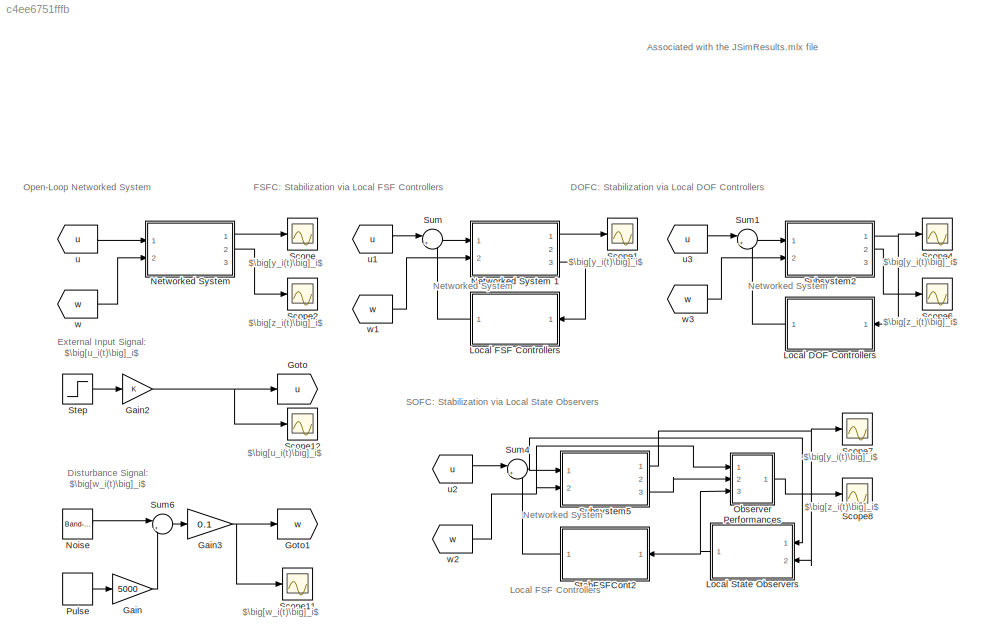
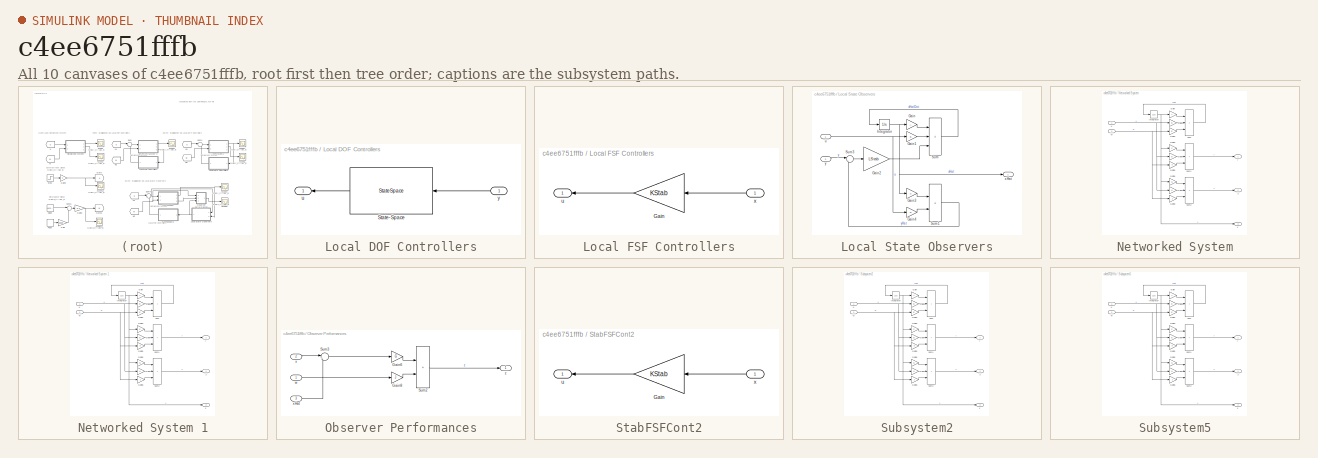
[diagram: thumbnail index - all 10 canvases of the model, root first then tree order]
MODEL slx_c4ee6751fffb
KIND model
CONFIG AbsTol = auto
CONFIG EnableMultiTasking = off
CONFIG FixedStep = auto
CONFIG MaxStep = auto
CONFIG MinStep = auto
CONFIG RelTol = 1e-3
CONFIG SampleTimeConstraint = Unconstrained
CONFIG SolverName = VariableStepAuto
CONFIG StartTime = 0.0
CONFIG StopTime = 50
BLOCK [Gain] Gain
  Gain = 5000
BLOCK [Gain] Gain2
  Multiplication = Matrix(K*u)
BLOCK [Gain] Gain3
  Gain = 0.1
  Multiplication = Matrix(K*u)
BLOCK [Goto] Goto
  GotoTag = u
BLOCK [Goto] Goto1
  GotoTag = w
BLOCK [SubSystem] Local DOF Controllers
  Ports = [1, 1]
  RequestExecContextInheritance = off
BLOCK [StateSpace] Local DOF Controllers/State-Space
  A = AcStab
  B = BcStab
  C = CcStab
  D = DcStab
  InitialCondition = zeros(n,1)
  Ports = [1, 1]
BLOCK [Outport] Local DOF Controllers/u
BLOCK [Inport] Local DOF Controllers/y
BLOCK [SubSystem] Local FSF Controllers
  Ports = [1, 1]
  RequestExecContextInheritance = off
BLOCK [Gain] Local FSF Controllers/Gain
  Gain = KStab
  Multiplication = Matrix(K*u)
BLOCK [Outport] Local FSF Controllers/u
BLOCK [Inport] Local FSF Controllers/x
BLOCK [SubSystem] Local State Observers
  Ports = [2, 1]
  RequestExecContextInheritance = off
BLOCK [Gain] Local State Observers/Gain
  Gain = A
  Multiplication = Matrix(K*u)
BLOCK [Gain] Local State Observers/Gain1
  Gain = B
  Multiplication = Matrix(K*u)
BLOCK [Gain] Local State Observers/Gain2
  Gain = LStab
  Multiplication = Matrix(K*u)
BLOCK [Gain] Local State Observers/Gain3
  Gain = C
  Multiplication = Matrix(K*u)
BLOCK [Gain] Local State Observers/Gain4
  Gain = D
  Multiplication = Matrix(K*u)
BLOCK [Integrator] Local State Observers/Integrator
  InitialCondition = zeros(n,1)
  Ports = [1, 1]
BLOCK [Sum] Local State Observers/Sum
  IconShape = rectangular
  Inputs = +++
  Ports = [3, 1]
BLOCK [Sum] Local State Observers/Sum1
  IconShape = rectangular
  Ports = [2, 1]
BLOCK [Sum] Local State Observers/Sum3
  Inputs = |+-
  Ports = [2, 1]
BLOCK [Inport] Local State Observers/u
BLOCK [Outport] Local State Observers/xHat
BLOCK [Inport] Local State Observers/y
  Port = 2
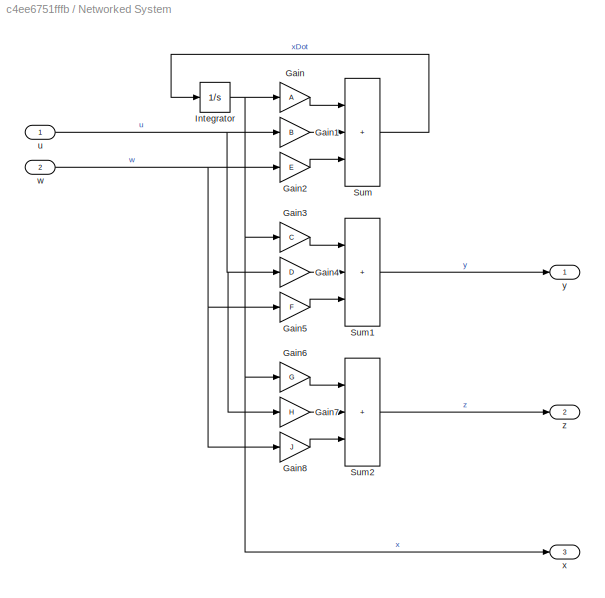
BLOCK [SubSystem] Networked System
  Ports = [2, 3]
  RequestExecContextInheritance = off
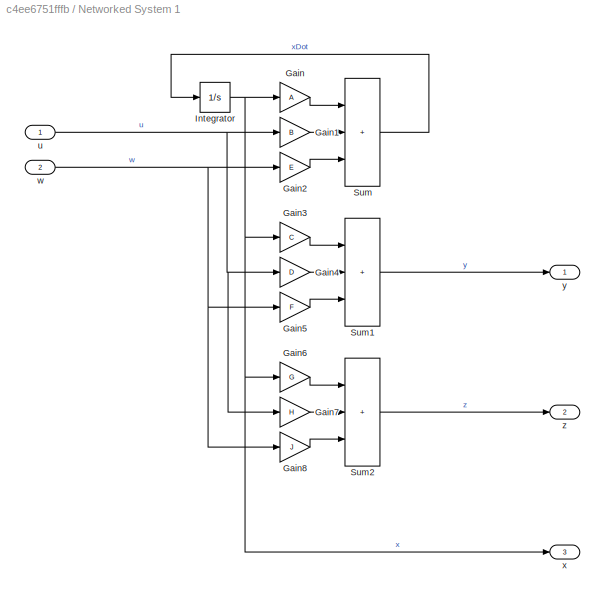
BLOCK [SubSystem] Networked System 1
  Ports = [2, 3]
  RequestExecContextInheritance = off
BLOCK [Gain] Networked System 1/Gain
  Gain = A
  Multiplication = Matrix(K*u)
BLOCK [Gain] Networked System 1/Gain1
  Gain = B
  Multiplication = Matrix(K*u)
BLOCK [Gain] Networked System 1/Gain2
  Gain = E
  Multiplication = Matrix(K*u)
BLOCK [Gain] Networked System 1/Gain3
  Gain = C
  Multiplication = Matrix(K*u)
BLOCK [Gain] Networked System 1/Gain4
  Gain = D
  Multiplication = Matrix(K*u)
BLOCK [Gain] Networked System 1/Gain5
  Gain = F
  Multiplication = Matrix(K*u)
BLOCK [Gain] Networked System 1/Gain6
  Gain = G
  Multiplication = Matrix(K*u)
BLOCK [Gain] Networked System 1/Gain7
  Gain = H
  Multiplication = Matrix(K*u)
BLOCK [Gain] Networked System 1/Gain8
  Gain = J
  Multiplication = Matrix(K*u)
BLOCK [Integrator] Networked System 1/Integrator
  InitialCondition = 10*ones(n,1)
  Ports = [1, 1]
BLOCK [Sum] Networked System 1/Sum
  IconShape = rectangular
  Inputs = +++
  Ports = [3, 1]
BLOCK [Sum] Networked System 1/Sum1
  IconShape = rectangular
  Inputs = +++
  Ports = [3, 1]
BLOCK [Sum] Networked System 1/Sum2
  IconShape = rectangular
  Inputs = +++
  Ports = [3, 1]
BLOCK [Inport] Networked System 1/u
BLOCK [Inport] Networked System 1/w
  Port = 2
BLOCK [Outport] Networked System 1/x
  Port = 3
BLOCK [Outport] Networked System 1/y
BLOCK [Outport] Networked System 1/z
  Port = 2
BLOCK [Gain] Networked System/Gain
  Gain = A
  Multiplication = Matrix(K*u)
BLOCK [Gain] Networked System/Gain1
  Gain = B
  Multiplication = Matrix(K*u)
BLOCK [Gain] Networked System/Gain2
  Gain = E
  Multiplication = Matrix(K*u)
BLOCK [Gain] Networked System/Gain3
  Gain = C
  Multiplication = Matrix(K*u)
BLOCK [Gain] Networked System/Gain4
  Gain = D
  Multiplication = Matrix(K*u)
BLOCK [Gain] Networked System/Gain5
  Gain = F
  Multiplication = Matrix(K*u)
BLOCK [Gain] Networked System/Gain6
  Gain = G
  Multiplication = Matrix(K*u)
BLOCK [Gain] Networked System/Gain7
  Gain = H
  Multiplication = Matrix(K*u)
BLOCK [Gain] Networked System/Gain8
  Gain = J
  Multiplication = Matrix(K*u)
BLOCK [Integrator] Networked System/Integrator
  InitialCondition = 10*ones(n,1)
  Ports = [1, 1]
BLOCK [Sum] Networked System/Sum
  IconShape = rectangular
  Inputs = +++
  Ports = [3, 1]
BLOCK [Sum] Networked System/Sum1
  IconShape = rectangular
  Inputs = +++
  Ports = [3, 1]
BLOCK [Sum] Networked System/Sum2
  IconShape = rectangular
  Inputs = +++
  Ports = [3, 1]
BLOCK [Inport] Networked System/u
BLOCK [Inport] Networked System/w
  Port = 2
BLOCK [Outport] Networked System/x
  Port = 3
BLOCK [Outport] Networked System/y
BLOCK [Outport] Networked System/z
  Port = 2
BLOCK [Reference] Noise  REF=simulink/Sources/Band-Limited
White Noise
  Ports = [0, 1]
  SourceBlock = simulink/Sources/Band-Limited\nWhite Noise
  SourceProductBaseCode = SL
  SourceType = Band-Limited White Noise.
BLOCK [SubSystem] Observer Performances
  Ports = [3, 1]
  RequestExecContextInheritance = off
BLOCK [Gain] Observer Performances/Gain6
  Gain = G
  Multiplication = Matrix(K*u)
BLOCK [Gain] Observer Performances/Gain8
  Gain = J
  Multiplication = Matrix(K*u)
BLOCK [Sum] Observer Performances/Sum2
  IconShape = rectangular
  Ports = [2, 1]
BLOCK [Sum] Observer Performances/Sum3
  Inputs = |+-
  Ports = [2, 1]
BLOCK [Inport] Observer Performances/w
BLOCK [Inport] Observer Performances/x
  Port = 2
BLOCK [Inport] Observer Performances/xHat
  Port = 3
BLOCK [Outport] Observer Performances/z
BLOCK [DiscretePulseGenerator] Pulse
  Period = 10
  PhaseDelay = 5
  Ports = [0, 1]
  PulseType = Time based
BLOCK [Scope] Scope
  Floating = off
  NumInputPorts = 1
  Ports = [1]
  ScopeSpecificationString = Simulink.scopes.TimeScopeBlockCfg('CurrentConfiguration', extmgr.ConfigurationSet(extmgr.Configuration('Core','General UI',true),extmgr.Configuration('Core','Source UI',true),extmgr.Configuration('Sources','WiredSimulink',true,'DataLogging',true,'DataLoggingVariableName','DataOpenLoop','DataLoggingSaveFormat','Array'),extmgr.Configuration('Visuals','Time Domain',true,'SerializedDisplays',{struct('...<+3853ch>
BLOCK [Scope] Scope1
  Floating = off
  NumInputPorts = 1
  Ports = [1]
  ScopeSpecificationString = Simulink.scopes.TimeScopeBlockCfg('CurrentConfiguration', extmgr.ConfigurationSet(extmgr.Configuration('Core','General UI',true),extmgr.Configuration('Core','Source UI',true),extmgr.Configuration('Sources','WiredSimulink',true,'DataLoggingVariableName','DataCentStabFSF','DataLogging',true,'DataLoggingSaveFormat','Array'),extmgr.Configuration('Visuals','Time Domain',true,'SerializedDisplays',{struc...<+1565ch>
BLOCK [Scope] Scope11
  Floating = off
  NumInputPorts = 1
  Ports = [1]
  ScopeSpecificationString = Simulink.scopes.TimeScopeBlockCfg('CurrentConfiguration', extmgr.ConfigurationSet(extmgr.Configuration('Core','General UI',true),extmgr.Configuration('Core','Source UI',true),extmgr.Configuration('Sources','WiredSimulink',true,'DataLoggingVariableName','DataDisturbancew','DataLogging',true,'DataLoggingSaveFormat','Array'),extmgr.Configuration('Visuals','Time Domain',true,'SerializedDisplays',{stru...<+1447ch>
BLOCK [Scope] Scope12
  Floating = off
  NumInputPorts = 1
  Ports = [1]
  ScopeSpecificationString = Simulink.scopes.TimeScopeBlockCfg('CurrentConfiguration', extmgr.ConfigurationSet(extmgr.Configuration('Core','General UI',true),extmgr.Configuration('Core','Source UI',true),extmgr.Configuration('Sources','WiredSimulink',true,'DataLoggingVariableName','DataInputu','DataLogging',true,'DataLoggingSaveFormat','Array'),extmgr.Configuration('Visuals','Time Domain',true,'SerializedDisplays',{struct('Mi...<+1474ch>
BLOCK [Scope] Scope2
  Floating = off
  NumInputPorts = 1
  Ports = [1]
  ScopeSpecificationString = Simulink.scopes.TimeScopeBlockCfg('CurrentConfiguration', extmgr.ConfigurationSet(extmgr.Configuration('Core','General UI',true),extmgr.Configuration('Core','Source UI',true),extmgr.Configuration('Sources','WiredSimulink',true,'DataLogging',true,'DataLoggingVariableName','ScopeData1','DataLoggingSaveFormat','Array'),extmgr.Configuration('Visuals','Time Domain',true,'SerializedDisplays',{struct('Mi...<+3851ch>
BLOCK [Scope] Scope4
  Floating = off
  NumInputPorts = 1
  Ports = [1]
  ScopeSpecificationString = Simulink.scopes.TimeScopeBlockCfg('CurrentConfiguration', extmgr.ConfigurationSet(extmgr.Configuration('Core','General UI',true),extmgr.Configuration('Core','Source UI',true),extmgr.Configuration('Sources','WiredSimulink',true,'DataLoggingVariableName','DataCentStabDOF','DataLogging',true,'DataLoggingSaveFormat','Array'),extmgr.Configuration('Visuals','Time Domain',true,'SerializedDisplays',{struc...<+1541ch>
BLOCK [Scope] Scope6
  Floating = off
  NumInputPorts = 1
  Ports = [1]
  ScopeSpecificationString = Simulink.scopes.TimeScopeBlockCfg('CurrentConfiguration', extmgr.ConfigurationSet(extmgr.Configuration('Core','General UI',true),extmgr.Configuration('Core','Source UI',true),extmgr.Configuration('Sources','WiredSimulink',true,'DataLoggingVariableName','DataCentStabDOFPerf','DataLogging',true,'DataLoggingSaveFormat','Array'),extmgr.Configuration('Visuals','Time Domain',true,'SerializedDisplays',{s...<+1485ch>
BLOCK [Scope] Scope7
  Floating = off
  NumInputPorts = 1
  Ports = [1]
  ScopeSpecificationString = Simulink.scopes.TimeScopeBlockCfg('CurrentConfiguration', extmgr.ConfigurationSet(extmgr.Configuration('Core','General UI',true),extmgr.Configuration('Core','Source UI',true),extmgr.Configuration('Sources','WiredSimulink',true,'DataLoggingVariableName','DataCentStabObs','DataLogging',true,'DataLoggingSaveFormat','Array'),extmgr.Configuration('Visuals','Time Domain',true,'SerializedDisplays',{struc...<+1532ch>
BLOCK [Scope] Scope8
  Floating = off
  NumInputPorts = 1
  Ports = [1]
  ScopeSpecificationString = Simulink.scopes.TimeScopeBlockCfg('CurrentConfiguration', extmgr.ConfigurationSet(extmgr.Configuration('Core','General UI',true),extmgr.Configuration('Core','Source UI',true),extmgr.Configuration('Sources','WiredSimulink',true,'DataLoggingVariableName','DataCentStabObsError','DataLogging',true,'DataLoggingSaveFormat','Array'),extmgr.Configuration('Visuals','Time Domain',true,'SerializedDisplays',{...<+1474ch>
BLOCK [SubSystem] StabFSFCont2
  Ports = [1, 1]
  RequestExecContextInheritance = off
BLOCK [Gain] StabFSFCont2/Gain
  Gain = KStab
  Multiplication = Matrix(K*u)
BLOCK [Outport] StabFSFCont2/u
BLOCK [Inport] StabFSFCont2/x
BLOCK [Step] Step
  After = 0
  Before = 1
  SampleTime = 0
  Time = 5
BLOCK [SubSystem] Subsystem2
  Ports = [2, 3]
  RequestExecContextInheritance = off
BLOCK [Gain] Subsystem2/Gain
  Gain = A
  Multiplication = Matrix(K*u)
BLOCK [Gain] Subsystem2/Gain1
  Gain = B
  Multiplication = Matrix(K*u)
BLOCK [Gain] Subsystem2/Gain2
  Gain = E
  Multiplication = Matrix(K*u)
BLOCK [Gain] Subsystem2/Gain3
  Gain = C
  Multiplication = Matrix(K*u)
BLOCK [Gain] Subsystem2/Gain4
  Gain = D
  Multiplication = Matrix(K*u)
BLOCK [Gain] Subsystem2/Gain5
  Gain = F
  Multiplication = Matrix(K*u)
BLOCK [Gain] Subsystem2/Gain6
  Gain = G
  Multiplication = Matrix(K*u)
BLOCK [Gain] Subsystem2/Gain7
  Gain = H
  Multiplication = Matrix(K*u)
BLOCK [Gain] Subsystem2/Gain8
  Gain = J
  Multiplication = Matrix(K*u)
BLOCK [Integrator] Subsystem2/Integrator
  InitialCondition = 10*ones(n,1)
  Ports = [1, 1]
BLOCK [Sum] Subsystem2/Sum
  IconShape = rectangular
  Inputs = +++
  Ports = [3, 1]
BLOCK [Sum] Subsystem2/Sum1
  IconShape = rectangular
  Inputs = +++
  Ports = [3, 1]
BLOCK [Sum] Subsystem2/Sum2
  IconShape = rectangular
  Inputs = +++
  Ports = [3, 1]
BLOCK [Inport] Subsystem2/u
BLOCK [Inport] Subsystem2/w
  Port = 2
BLOCK [Outport] Subsystem2/x
  Port = 3
BLOCK [Outport] Subsystem2/y
BLOCK [Outport] Subsystem2/z
  Port = 2
BLOCK [SubSystem] Subsystem5
  Ports = [2, 3]
  RequestExecContextInheritance = off
BLOCK [Gain] Subsystem5/Gain
  Gain = A
  Multiplication = Matrix(K*u)
BLOCK [Gain] Subsystem5/Gain1
  Gain = B
  Multiplication = Matrix(K*u)
BLOCK [Gain] Subsystem5/Gain2
  Gain = E
  Multiplication = Matrix(K*u)
BLOCK [Gain] Subsystem5/Gain3
  Gain = C
  Multiplication = Matrix(K*u)
BLOCK [Gain] Subsystem5/Gain4
  Gain = D
  Multiplication = Matrix(K*u)
BLOCK [Gain] Subsystem5/Gain5
  Gain = F
  Multiplication = Matrix(K*u)
BLOCK [Gain] Subsystem5/Gain6
  Gain = G
  Multiplication = Matrix(K*u)
BLOCK [Gain] Subsystem5/Gain7
  Gain = H
  Multiplication = Matrix(K*u)
BLOCK [Gain] Subsystem5/Gain8
  Gain = J
  Multiplication = Matrix(K*u)
BLOCK [Integrator] Subsystem5/Integrator
  InitialCondition = 10*ones(n,1)
  Ports = [1, 1]
BLOCK [Sum] Subsystem5/Sum
  IconShape = rectangular
  Inputs = +++
  Ports = [3, 1]
BLOCK [Sum] Subsystem5/Sum1
  IconShape = rectangular
  Inputs = +++
  Ports = [3, 1]
BLOCK [Sum] Subsystem5/Sum2
  IconShape = rectangular
  Inputs = +++
  Ports = [3, 1]
BLOCK [Inport] Subsystem5/u
BLOCK [Inport] Subsystem5/w
  Port = 2
BLOCK [Outport] Subsystem5/x
  Port = 3
BLOCK [Outport] Subsystem5/y
BLOCK [Outport] Subsystem5/z
  Port = 2
BLOCK [Sum] Sum
  Inputs = |++
  Ports = [2, 1]
BLOCK [Sum] Sum1
  Inputs = |++
  Ports = [2, 1]
BLOCK [Sum] Sum4
  Inputs = |++
  Ports = [2, 1]
BLOCK [Sum] Sum6
  Inputs = |++
  Ports = [2, 1]
BLOCK [From] u
  GotoTag = u
BLOCK [From] u1
  GotoTag = u
BLOCK [From] u2
  GotoTag = u
BLOCK [From] u3
  GotoTag = u
BLOCK [From] w
  GotoTag = w
BLOCK [From] w1
  GotoTag = w
BLOCK [From] w2
  GotoTag = w
BLOCK [From] w3
  GotoTag = w
ANNOTATION (root): DOFC: Stabilization via Local DOF Controllers
ANNOTATION (root): FSFC: Stabilization via Local FSF Controllers
ANNOTATION (root): Open-Loop Networked System
ANNOTATION (root): SOFC: Stabilization via Local State Observers
ANNOTATION (root): Associated with the JSimResults.mlx file
ANNOTATION (root): $\big[u_i(t)\big]_i$
ANNOTATION (root): $\big[w_i(t)\big]_i$
ANNOTATION (root): $\big[y_i(t)\big]_i$
ANNOTATION (root): $\big[z_i(t)\big]_i$
ANNOTATION (root): Disturbance Signal: $\big[w_i(t)\big]_i$
ANNOTATION (root): External Input Signal: $\big[u_i(t)\big]_i$
ANNOTATION (root): Local FSF Controllers
ANNOTATION (root): Networked System
NET Gain2:1 -> Goto:1, Scope12:1
NET Gain3:1 -> Goto1:1, Scope11:1
LINE Gain:1 -> Sum6:2
LINE Local DOF Controllers/State-Space:1 -> Local DOF Controllers/u:1
LINE Local DOF Controllers/y:1 -> Local DOF Controllers/State-Space:1
LINE Local DOF Controllers:1 -> Sum1:2
LINE Local FSF Controllers/Gain:1 -> Local FSF Controllers/u:1
LINE Local FSF Controllers/x:1 -> Local FSF Controllers/Gain:1
LINE Local FSF Controllers:1 -> Sum:2
LINE Local State Observers/Gain1:1 -> Local State Observers/Sum:2
LINE Local State Observers/Gain2:1 -> Local State Observers/Sum:3
LINE Local State Observers/Gain3:1 -> Local State Observers/Sum1:1
LINE Local State Observers/Gain4:1 -> Local State Observers/Sum1:2
LINE Local State Observers/Gain:1 -> Local State Observers/Sum:1
NET Local State Observers/Integrator:1 -> Local State Observers/Gain3:1, Local State Observers/Gain:1, Local State Observers/xHat:1
LINE Local State Observers/Sum1:1 -> Local State Observers/Sum3:2
LINE Local State Observers/Sum3:1 -> Local State Observers/Gain2:1
LINE Local State Observers/Sum:1 -> Local State Observers/Integrator:1
NET Local State Observers/u:1 -> Local State Observers/Gain1:1, Local State Observers/Gain4:1
LINE Local State Observers/y:1 -> Local State Observers/Sum3:1
NET Local State Observers:1 -> Observer Performances:3, StabFSFCont2:1
LINE Networked System 1/Gain1:1 -> Networked System 1/Sum:2
LINE Networked System 1/Gain2:1 -> Networked System 1/Sum:3
LINE Networked System 1/Gain3:1 -> Networked System 1/Sum1:1
LINE Networked System 1/Gain4:1 -> Networked System 1/Sum1:2
LINE Networked System 1/Gain5:1 -> Networked System 1/Sum1:3
LINE Networked System 1/Gain6:1 -> Networked System 1/Sum2:1
LINE Networked System 1/Gain7:1 -> Networked System 1/Sum2:2
LINE Networked System 1/Gain8:1 -> Networked System 1/Sum2:3
LINE Networked System 1/Gain:1 -> Networked System 1/Sum:1
NET Networked System 1/Integrator:1 -> Networked System 1/Gain3:1, Networked System 1/Gain6:1, Networked System 1/Gain:1, Networked System 1/x:1
LINE Networked System 1/Sum1:1 -> Networked System 1/y:1
LINE Networked System 1/Sum2:1 -> Networked System 1/z:1
LINE Networked System 1/Sum:1 -> Networked System 1/Integrator:1
NET Networked System 1/u:1 -> Networked System 1/Gain1:1, Networked System 1/Gain4:1, Networked System 1/Gain7:1
NET Networked System 1/w:1 -> Networked System 1/Gain2:1, Networked System 1/Gain5:1, Networked System 1/Gain8:1
LINE Networked System 1:1 -> Scope1:1
LINE Networked System 1:3 -> Local FSF Controllers:1
LINE Networked System/Gain1:1 -> Networked System/Sum:2
LINE Networked System/Gain2:1 -> Networked System/Sum:3
LINE Networked System/Gain3:1 -> Networked System/Sum1:1
LINE Networked System/Gain4:1 -> Networked System/Sum1:2
LINE Networked System/Gain5:1 -> Networked System/Sum1:3
LINE Networked System/Gain6:1 -> Networked System/Sum2:1
LINE Networked System/Gain7:1 -> Networked System/Sum2:2
LINE Networked System/Gain8:1 -> Networked System/Sum2:3
LINE Networked System/Gain:1 -> Networked System/Sum:1
NET Networked System/Integrator:1 -> Networked System/Gain3:1, Networked System/Gain6:1, Networked System/Gain:1, Networked System/x:1
LINE Networked System/Sum1:1 -> Networked System/y:1
LINE Networked System/Sum2:1 -> Networked System/z:1
LINE Networked System/Sum:1 -> Networked System/Integrator:1
NET Networked System/u:1 -> Networked System/Gain1:1, Networked System/Gain4:1, Networked System/Gain7:1
NET Networked System/w:1 -> Networked System/Gain2:1, Networked System/Gain5:1, Networked System/Gain8:1
LINE Networked System:1 -> Scope:1
LINE Networked System:2 -> Scope2:1
LINE Noise:1 -> Sum6:1
LINE Observer Performances/Gain6:1 -> Observer Performances/Sum2:1
LINE Observer Performances/Gain8:1 -> Observer Performances/Sum2:2
LINE Observer Performances/Sum2:1 -> Observer Performances/z:1
LINE Observer Performances/Sum3:1 -> Observer Performances/Gain6:1
LINE Observer Performances/w:1 -> Observer Performances/Gain8:1
LINE Observer Performances/x:1 -> Observer Performances/Sum3:1
LINE Observer Performances/xHat:1 -> Observer Performances/Sum3:2
LINE Observer Performances:1 -> Scope8:1
LINE Pulse:1 -> Gain:1
LINE StabFSFCont2/Gain:1 -> StabFSFCont2/u:1
LINE StabFSFCont2/x:1 -> StabFSFCont2/Gain:1
LINE StabFSFCont2:1 -> Sum4:2
LINE Step:1 -> Gain2:1
LINE Subsystem2/Gain1:1 -> Subsystem2/Sum:2
LINE Subsystem2/Gain2:1 -> Subsystem2/Sum:3
LINE Subsystem2/Gain3:1 -> Subsystem2/Sum1:1
LINE Subsystem2/Gain4:1 -> Subsystem2/Sum1:2
LINE Subsystem2/Gain5:1 -> Subsystem2/Sum1:3
LINE Subsystem2/Gain6:1 -> Subsystem2/Sum2:1
LINE Subsystem2/Gain7:1 -> Subsystem2/Sum2:2
LINE Subsystem2/Gain8:1 -> Subsystem2/Sum2:3
LINE Subsystem2/Gain:1 -> Subsystem2/Sum:1
NET Subsystem2/Integrator:1 -> Subsystem2/Gain3:1, Subsystem2/Gain6:1, Subsystem2/Gain:1, Subsystem2/x:1
LINE Subsystem2/Sum1:1 -> Subsystem2/y:1
LINE Subsystem2/Sum2:1 -> Subsystem2/z:1
LINE Subsystem2/Sum:1 -> Subsystem2/Integrator:1
NET Subsystem2/u:1 -> Subsystem2/Gain1:1, Subsystem2/Gain4:1, Subsystem2/Gain7:1
NET Subsystem2/w:1 -> Subsystem2/Gain2:1, Subsystem2/Gain5:1, Subsystem2/Gain8:1
NET Subsystem2:1 -> Local DOF Controllers:1, Scope4:1
LINE Subsystem2:2 -> Scope6:1
LINE Subsystem5/Gain1:1 -> Subsystem5/Sum:2
LINE Subsystem5/Gain2:1 -> Subsystem5/Sum:3
LINE Subsystem5/Gain3:1 -> Subsystem5/Sum1:1
LINE Subsystem5/Gain4:1 -> Subsystem5/Sum1:2
LINE Subsystem5/Gain5:1 -> Subsystem5/Sum1:3
LINE Subsystem5/Gain6:1 -> Subsystem5/Sum2:1
LINE Subsystem5/Gain7:1 -> Subsystem5/Sum2:2
LINE Subsystem5/Gain8:1 -> Subsystem5/Sum2:3
LINE Subsystem5/Gain:1 -> Subsystem5/Sum:1
NET Subsystem5/Integrator:1 -> Subsystem5/Gain3:1, Subsystem5/Gain6:1, Subsystem5/Gain:1, Subsystem5/x:1
LINE Subsystem5/Sum1:1 -> Subsystem5/y:1
LINE Subsystem5/Sum2:1 -> Subsystem5/z:1
LINE Subsystem5/Sum:1 -> Subsystem5/Integrator:1
NET Subsystem5/u:1 -> Subsystem5/Gain1:1, Subsystem5/Gain4:1, Subsystem5/Gain7:1
NET Subsystem5/w:1 -> Subsystem5/Gain2:1, Subsystem5/Gain5:1, Subsystem5/Gain8:1
NET Subsystem5:1 -> Local State Observers:2, Scope7:1
LINE Subsystem5:3 -> Observer Performances:2
LINE Sum1:1 -> Subsystem2:1
NET Sum4:1 -> Local State Observers:1, Subsystem5:1
LINE Sum6:1 -> Gain3:1
LINE Sum:1 -> Networked System 1:1
LINE u1:1 -> Sum:1
LINE u2:1 -> Sum4:1
LINE u3:1 -> Sum1:1
LINE u:1 -> Networked System:1
LINE w1:1 -> Networked System 1:2
NET w2:1 -> Observer Performances:1, Subsystem5:2
LINE w3:1 -> Subsystem2:2
LINE w:1 -> Networked System:2
note: NET lines group one-source signal fan-out (src -> all destinations, sorted); 1:1 wires keep LINE
